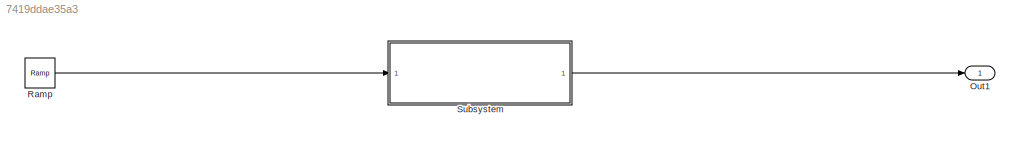
MODEL slx_7419ddae35a3
KIND model
CONFIG AbsTol = auto
CONFIG FixedStep = auto
CONFIG MaxStep = auto
CONFIG MinStep = auto
CONFIG RelTol = 1e-3
CONFIG SampleTimeConstraint = Unconstrained
CONFIG Solver = FixedStepDiscrete
CONFIG SolverMode = Auto
CONFIG SolverName = FixedStepDiscrete
CONFIG StartTime = 0.0
CONFIG StopTime = 10.0
BLOCK [Outport] Out1
  IconDisplay = Port number
BLOCK [Reference] Ramp  REF=simulink/Sources/Ramp
  Ports = [0, 1]
  SourceBlock = simulink/Sources/Ramp
  SourceType = Ramp
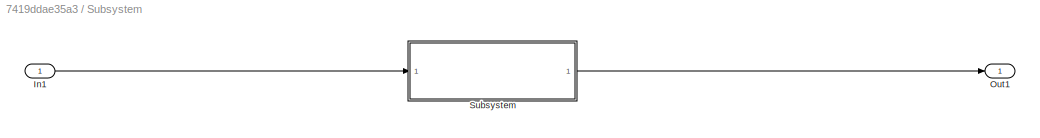
BLOCK [SubSystem] Subsystem
  Ports = [1, 1]
  RequestExecContextInheritance = off
  Variant = off
BLOCK [Inport] Subsystem/In1
  IconDisplay = Port number
BLOCK [Outport] Subsystem/Out1
  IconDisplay = Port number
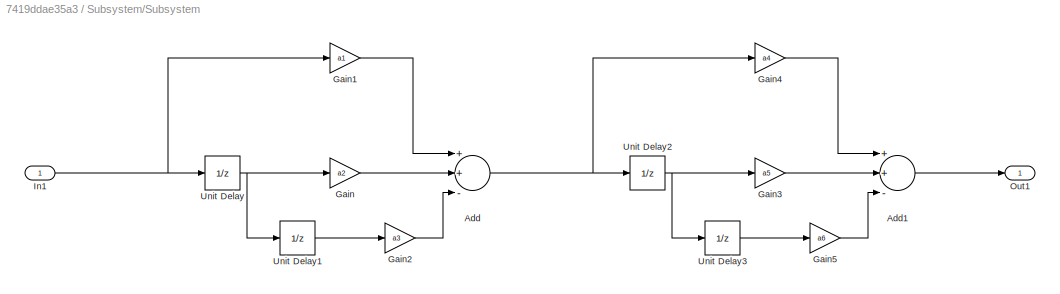
BLOCK [SubSystem] Subsystem/Subsystem
  Ports = [1, 1]
  RequestExecContextInheritance = off
  Variant = off
BLOCK [Sum] Subsystem/Subsystem/Add
  InputSameDT = off
  Inputs = ++-
  OutDataTypeStr = Inherit: Inherit via internal rule
  Ports = [3, 1]
  SaturateOnIntegerOverflow = off
BLOCK [Sum] Subsystem/Subsystem/Add1
  InputSameDT = off
  Inputs = ++-
  OutDataTypeStr = Inherit: Inherit via internal rule
  Ports = [3, 1]
  SaturateOnIntegerOverflow = off
BLOCK [Gain] Subsystem/Subsystem/Gain
  Gain = a2
  OutDataTypeStr = Inherit: Inherit via internal rule
  ParamDataTypeStr = Inherit: Inherit via internal rule
  SaturateOnIntegerOverflow = off
BLOCK [Gain] Subsystem/Subsystem/Gain1
  Gain = a1
  OutDataTypeStr = Inherit: Inherit via internal rule
  ParamDataTypeStr = Inherit: Inherit via internal rule
  SaturateOnIntegerOverflow = off
BLOCK [Gain] Subsystem/Subsystem/Gain2
  Gain = a3
  OutDataTypeStr = Inherit: Inherit via internal rule
  ParamDataTypeStr = Inherit: Inherit via internal rule
  SaturateOnIntegerOverflow = off
BLOCK [Gain] Subsystem/Subsystem/Gain3
  Gain = a5
  OutDataTypeStr = Inherit: Inherit via internal rule
  ParamDataTypeStr = Inherit: Inherit via internal rule
  SaturateOnIntegerOverflow = off
BLOCK [Gain] Subsystem/Subsystem/Gain4
  Gain = a4
  OutDataTypeStr = Inherit: Inherit via internal rule
  ParamDataTypeStr = Inherit: Inherit via internal rule
  SaturateOnIntegerOverflow = off
BLOCK [Gain] Subsystem/Subsystem/Gain5
  Gain = a6
  OutDataTypeStr = Inherit: Inherit via internal rule
  ParamDataTypeStr = Inherit: Inherit via internal rule
  SaturateOnIntegerOverflow = off
BLOCK [Inport] Subsystem/Subsystem/In1
  IconDisplay = Port number
BLOCK [Outport] Subsystem/Subsystem/Out1
  IconDisplay = Port number
BLOCK [UnitDelay] Subsystem/Subsystem/Unit Delay
  InputProcessing = Elements as channels (sample based)
  SampleTime = -1
BLOCK [UnitDelay] Subsystem/Subsystem/Unit Delay1
  InputProcessing = Elements as channels (sample based)
  SampleTime = -1
BLOCK [UnitDelay] Subsystem/Subsystem/Unit Delay2
  InputProcessing = Elements as channels (sample based)
  SampleTime = -1
BLOCK [UnitDelay] Subsystem/Subsystem/Unit Delay3
  InputProcessing = Elements as channels (sample based)
  SampleTime = -1
LINE Ramp:1 -> Subsystem:1
LINE Subsystem/In1:1 -> Subsystem/Subsystem:1
LINE Subsystem/Subsystem/Add1:1 -> Subsystem/Subsystem/Out1:1
NET Subsystem/Subsystem/Add:1 -> Subsystem/Subsystem/Gain4:1, Subsystem/Subsystem/Unit Delay2:1
LINE Subsystem/Subsystem/Gain1:1 -> Subsystem/Subsystem/Add:1
LINE Subsystem/Subsystem/Gain2:1 -> Subsystem/Subsystem/Add:3
LINE Subsystem/Subsystem/Gain3:1 -> Subsystem/Subsystem/Add1:2
LINE Subsystem/Subsystem/Gain4:1 -> Subsystem/Subsystem/Add1:1
LINE Subsystem/Subsystem/Gain5:1 -> Subsystem/Subsystem/Add1:3
LINE Subsystem/Subsystem/Gain:1 -> Subsystem/Subsystem/Add:2
NET Subsystem/Subsystem/In1:1 -> Subsystem/Subsystem/Gain1:1, Subsystem/Subsystem/Unit Delay:1
LINE Subsystem/Subsystem/Unit Delay1:1 -> Subsystem/Subsystem/Gain2:1
NET Subsystem/Subsystem/Unit Delay2:1 -> Subsystem/Subsystem/Gain3:1, Subsystem/Subsystem/Unit Delay3:1
LINE Subsystem/Subsystem/Unit Delay3:1 -> Subsystem/Subsystem/Gain5:1
NET Subsystem/Subsystem/Unit Delay:1 -> Subsystem/Subsystem/Gain:1, Subsystem/Subsystem/Unit Delay1:1
LINE Subsystem/Subsystem:1 -> Subsystem/Out1:1
LINE Subsystem:1 -> Out1:1
note: NET lines group one-source signal fan-out (src -> all destinations, sorted); 1:1 wires keep LINE
